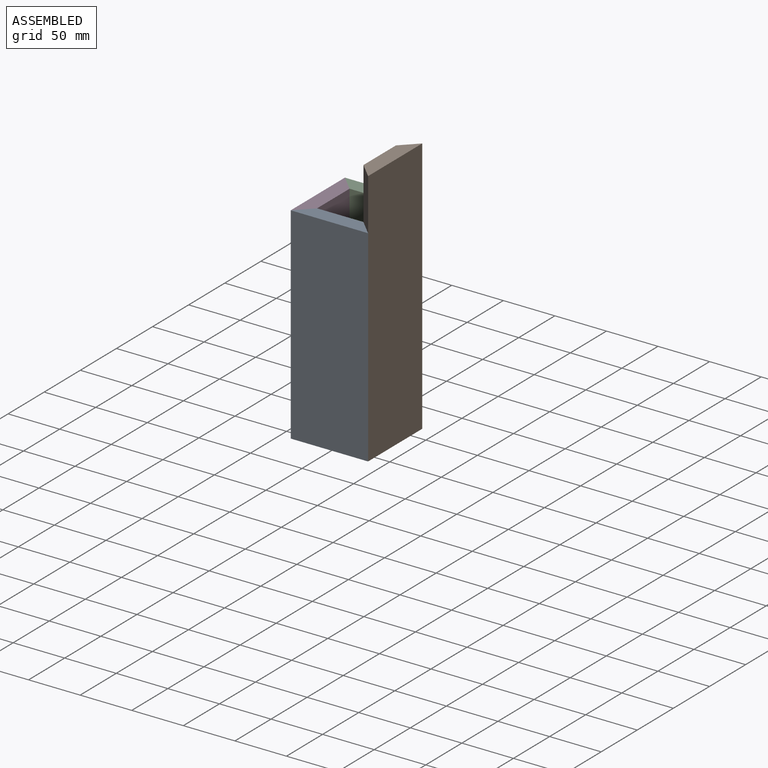
[diagram: assembled view]
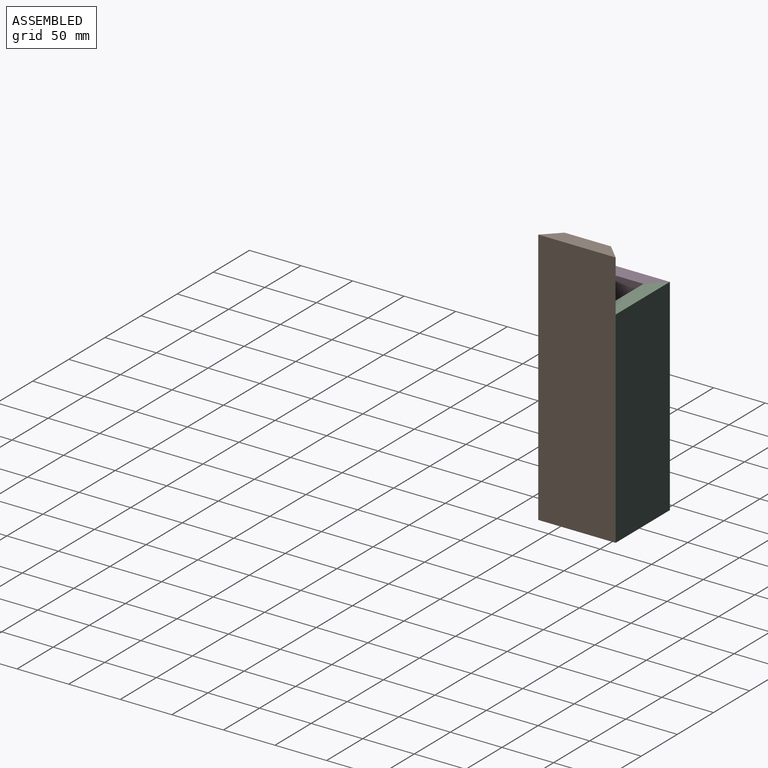
[diagram: assembled view, second angle]
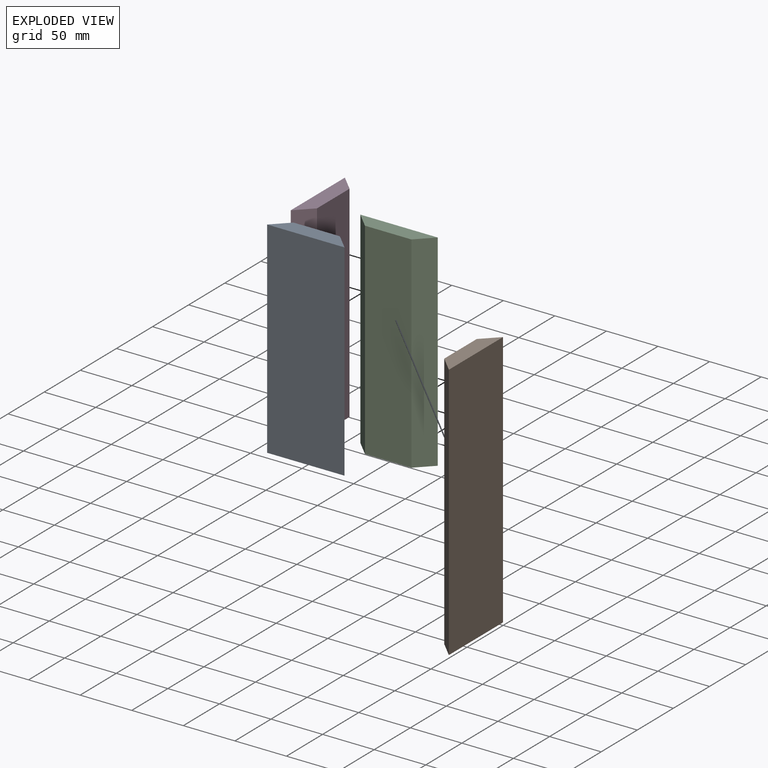
[diagram: exploded view]
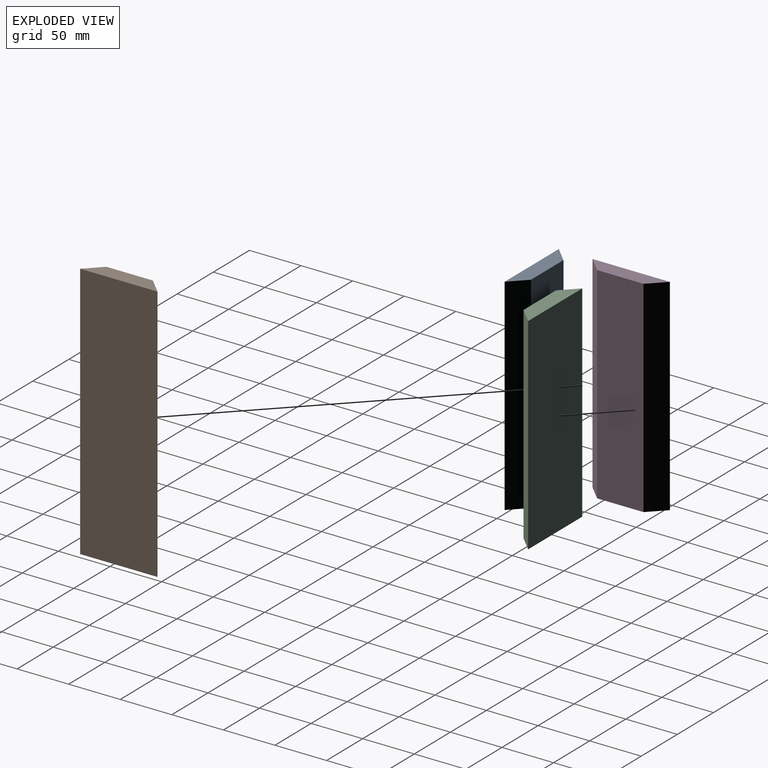
[diagram: exploded view, second angle]
ASSEMBLY  parts=4 mates=3
PART A: 6 faces, bbox 75x15x200 mm
  f0: plane 200x15mm, normal (-0.71,0.71,0), area 4242.6mm2, adj f1,f3,f4,f5
  f1: plane 200x75mm, normal (0,-1,0), area 15000mm2, adj f0,f2,f4,f5
  f2: plane 200x15mm, normal (0.71,0.71,0), area 4242.6mm2, adj f1,f3,f4,f5
  f3: plane 200x45mm, normal (0,1,0), area 9000mm2, adj f0,f2,f4,f5
  f4: plane 75x15mm, normal (0,0,1), area 900mm2, adj f0,f1,f2,f3
  f5: plane 75x15mm, normal (0,0,-1), area 900mm2, adj f0,f1,f2,f3
PART B: 6 faces, bbox 75x15x250 mm
  f0: plane 250x15mm, normal (-0.71,0.71,0), area 5303.3mm2, adj f1,f3,f4,f5
  f1: plane 250x75mm, normal (0,-1,0), area 18750mm2, adj f0,f2,f4,f5
  f2: plane 250x15mm, normal (0.71,0.71,0), area 5303.3mm2, adj f1,f3,f4,f5
  f3: plane 250x45mm, normal (0,1,0), area 11250mm2, adj f0,f2,f4,f5
  f4: plane 75x15mm, normal (0,0,1), area 900mm2, adj f0,f1,f2,f3
  f5: plane 75x15mm, normal (0,0,-1), area 900mm2, adj f0,f1,f2,f3
PART C: same geometry as A
PART D: same geometry as A
PLACE A t=(-84.45,33.54,-10.77)mm
PLACE B rot(axis=(0,0,1),90deg) t=(-9.45,33.54,-10.77)mm
PLACE C rot(axis=(1,0,0),180deg) t=(-84.45,108.54,189.23)mm
PLACE D rot(axis=(0,0,-1),90deg) t=(-84.45,108.54,-10.77)mm
MATE planar B.f2 <-> C.f2  axis (-0.71,0.71,0) through (-16.95,101.04,114.23)mm
MATE planar D.f2 <-> A.f0  axis (0.71,-0.71,0) through (-69.45,48.54,189.23)mm
MATE planar C.f0 <-> D.f0  axis (-0.71,-0.71,0) through (-76.95,101.04,89.23)mm
